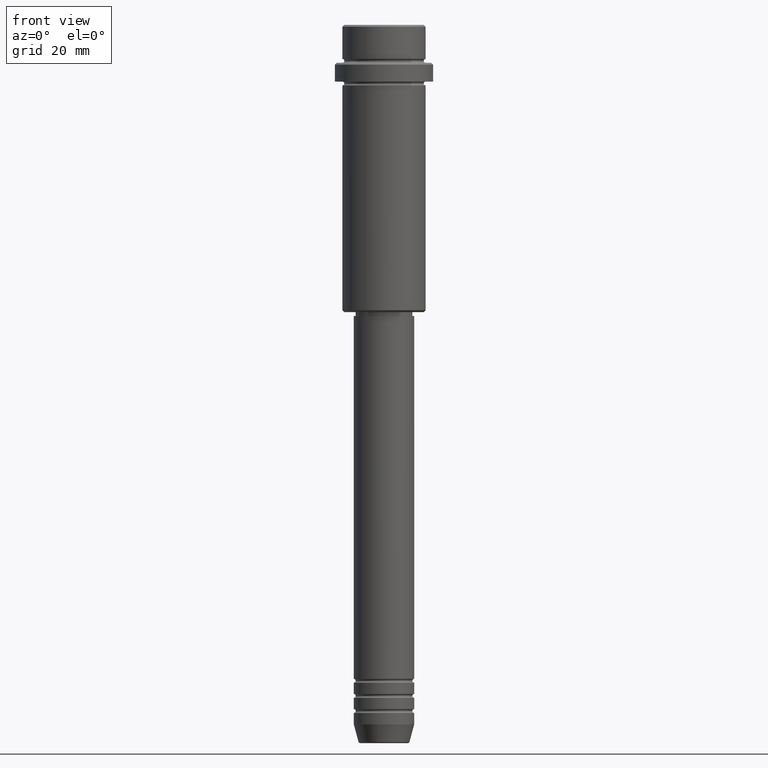
[diagram: clean part render]
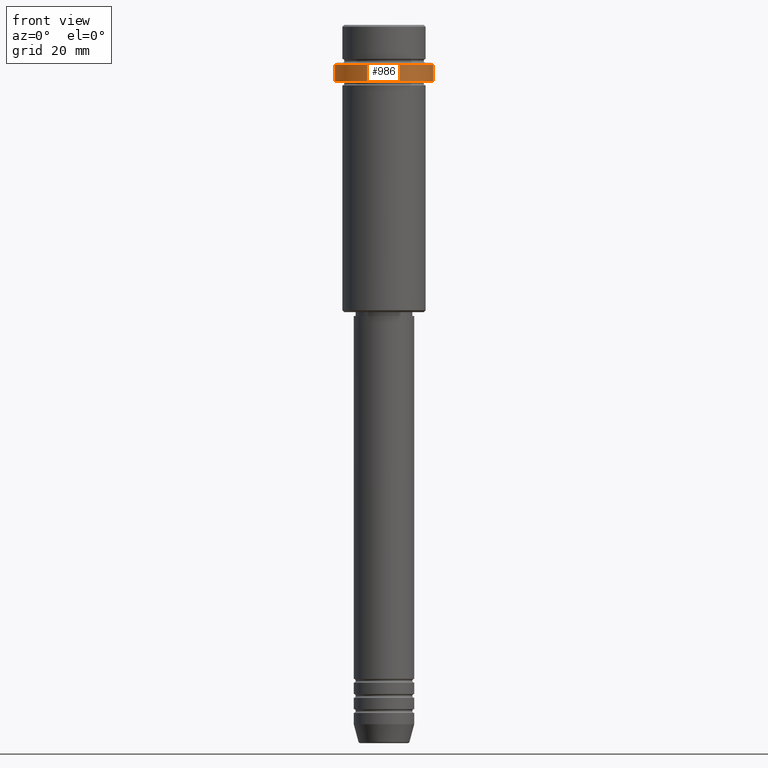
[diagram: same view with one face highlighted and labeled with its STEP entity id]
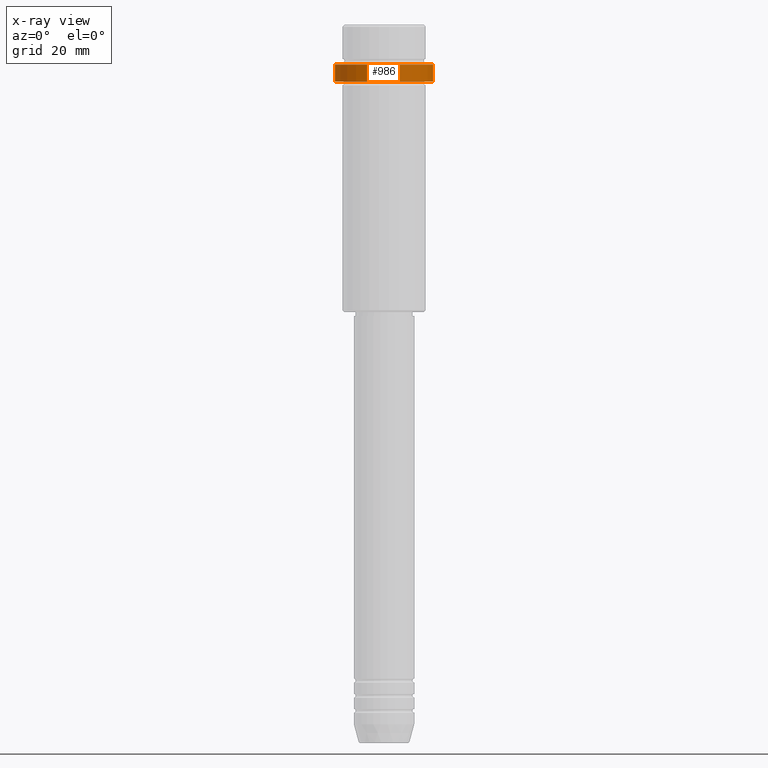
[diagram: x-ray of the same camera — body ghosted, the highlighted face saturated]
A machine part, front view. The second image highlights one B-rep face of the part: STEP entity #986.
The next image is the same camera in x-ray: the body ghosted, the highlighted face saturated — about 0% of this face is hidden behind the body in this view.
In plain terms, the highlighted cylindrical surface (partial cylindrical patch) has radius 13 mm, axis along (-0, -0, 1).
Its self-contained STEP definition (entity closure, byte-faithful):
#7 = VECTOR ( 'NONE', #676, 1000.000000000000000 ) ;
#21 = CARTESIAN_POINT ( 'NONE',  ( 13.00000000000000000, 0.000000000000000000, 0.000000000000000000 ) ) ;
#134 = DIRECTION ( 'NONE',  ( -0.000000000000000000, -0.000000000000000000, 1.000000000000000000 ) ) ;
#211 = VERTEX_POINT ( 'NONE', #355 ) ;
#228 = EDGE_CURVE ( 'NONE', #1117, #752, #1147, .T. ) ;
#241 = ORIENTED_EDGE ( 'NONE', *, *, #404, .F. ) ;
#243 = VECTOR ( 'NONE', #1180, 1000.000000000000000 ) ;
#260 = CARTESIAN_POINT ( 'NONE',  ( 13.00000000000000000, 0.000000000000000000, -15.00000000000000178 ) ) ;
#287 = CYLINDRICAL_SURFACE ( 'NONE', #1127, 13.00000000000000000 ) ;
#308 = ORIENTED_EDGE ( 'NONE', *, *, #750, .T. ) ;
#319 = DIRECTION ( 'NONE',  ( 1.000000000000000000, 0.000000000000000000, 0.000000000000000000 ) ) ;
#343 = LINE ( 'NONE', #21, #7 ) ;
#350 = DIRECTION ( 'NONE',  ( 1.000000000000000000, 0.000000000000000000, 0.000000000000000000 ) ) ;
#355 = CARTESIAN_POINT ( 'NONE',  ( -13.00000000000000000, 1.592040838891559095E-15, -10.50000000000000711 ) ) ;
#404 = EDGE_CURVE ( 'NONE', #1117, #211, #1047, .T. ) ;
#413 = CARTESIAN_POINT ( 'NONE',  ( -13.00000000000000000, 1.592040838891559095E-15, 0.000000000000000000 ) ) ;
#594 = DIRECTION ( 'NONE',  ( 0.000000000000000000, 0.000000000000000000, -1.000000000000000000 ) ) ;
#620 = CARTESIAN_POINT ( 'NONE',  ( 0.000000000000000000, 0.000000000000000000, 0.000000000000000000 ) ) ;
#636 = DIRECTION ( 'NONE',  ( -0.000000000000000000, -0.000000000000000000, 1.000000000000000000 ) ) ;
#676 = DIRECTION ( 'NONE',  ( -0.000000000000000000, -0.000000000000000000, 1.000000000000000000 ) ) ;
#750 = EDGE_CURVE ( 'NONE', #1359, #211, #1178, .T. ) ;
#752 = VERTEX_POINT ( 'NONE', #260 ) ;
#812 = ORIENTED_EDGE ( 'NONE', *, *, #228, .T. ) ;
#842 = FACE_OUTER_BOUND ( 'NONE', #916, .T. ) ;
#890 = ORIENTED_EDGE ( 'NONE', *, *, #1105, .T. ) ;
#916 = EDGE_LOOP ( 'NONE', ( #241, #812, #890, #308 ) ) ;
#920 = AXIS2_PLACEMENT_3D ( 'NONE', #1025, #134, #350 ) ;
#922 = AXIS2_PLACEMENT_3D ( 'NONE', #1332, #594, #1249 ) ;
#986 = ADVANCED_FACE ( 'NONE', ( #842 ), #287, .T. ) ;
#988 = CARTESIAN_POINT ( 'NONE',  ( 13.00000000000000000, 0.000000000000000000, -10.50000000000000711 ) ) ;
#1025 = CARTESIAN_POINT ( 'NONE',  ( 0.000000000000000000, 0.000000000000000000, -15.00000000000000178 ) ) ;
#1047 = LINE ( 'NONE', #413, #243 ) ;
#1105 = EDGE_CURVE ( 'NONE', #752, #1359, #343, .T. ) ;
#1117 = VERTEX_POINT ( 'NONE', #1206 ) ;
#1127 = AXIS2_PLACEMENT_3D ( 'NONE', #620, #636, #319 ) ;
#1147 = CIRCLE ( 'NONE', #920, 13.00000000000000000 ) ;
#1178 = CIRCLE ( 'NONE', #922, 13.00000000000000000 ) ;
#1180 = DIRECTION ( 'NONE',  ( -0.000000000000000000, -0.000000000000000000, 1.000000000000000000 ) ) ;
#1206 = CARTESIAN_POINT ( 'NONE',  ( -13.00000000000000000, 1.592040838891559095E-15, -15.00000000000000178 ) ) ;
#1249 = DIRECTION ( 'NONE',  ( 1.000000000000000000, 0.000000000000000000, 0.000000000000000000 ) ) ;
#1332 = CARTESIAN_POINT ( 'NONE',  ( 0.000000000000000000, 0.000000000000000000, -10.50000000000000711 ) ) ;
#1359 = VERTEX_POINT ( 'NONE', #988 ) ;